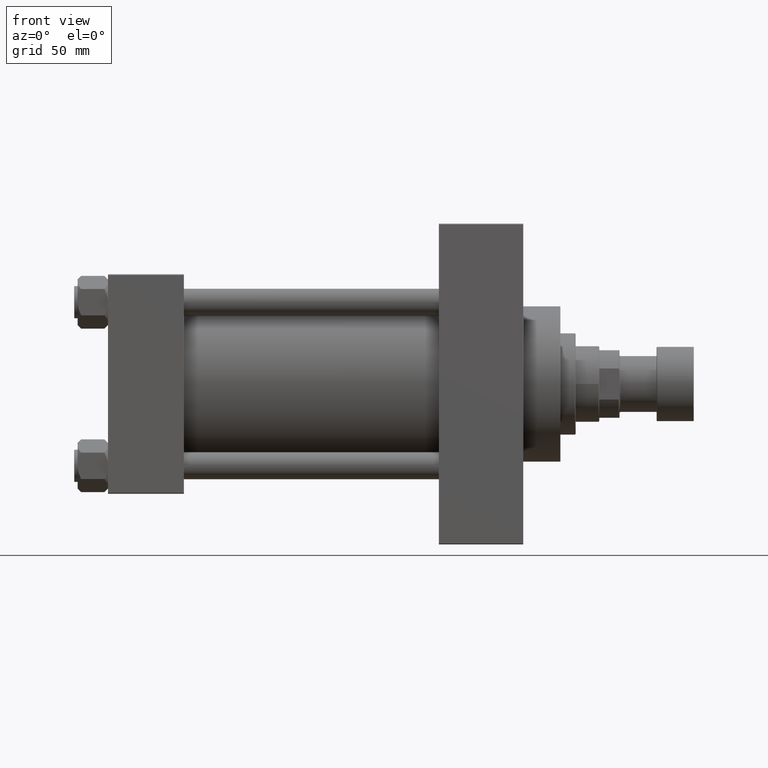
[diagram: clean part render]
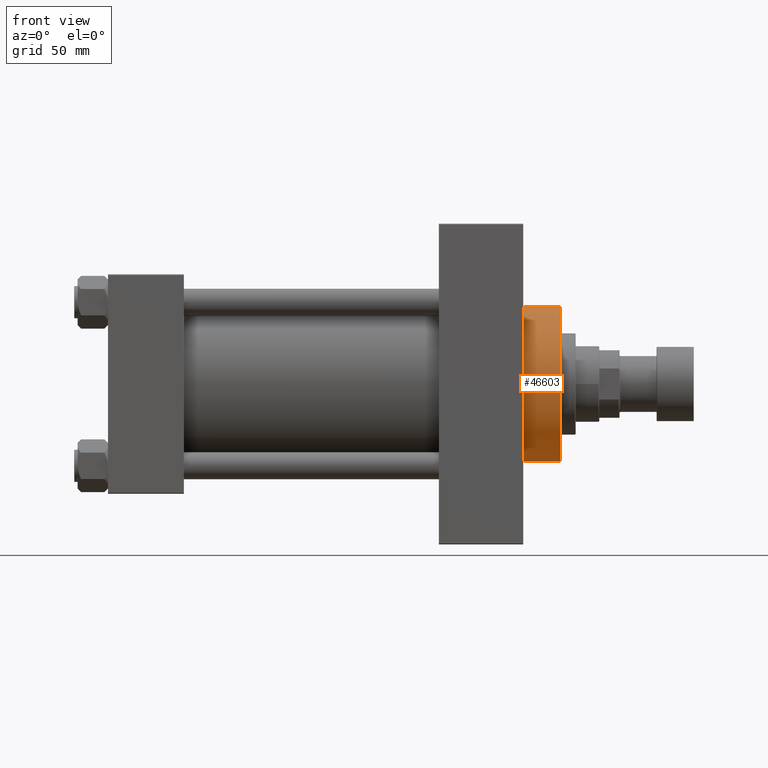
[diagram: same view with one face highlighted and labeled with its STEP entity id]
A machine part, front view. The second image highlights one B-rep face of the part: STEP entity #46603.
In plain terms, the highlighted cylindrical surface (partial cylindrical patch) has radius 46 mm, axis along (-1, -0, -0).
Its self-contained STEP definition (entity closure, byte-faithful):
#160 = EDGE_CURVE ( 'NONE', #10653, #19924, #6508, .T. ) ;
#283 = CIRCLE ( 'NONE', #34439, 46.00000000000000000 ) ;
#1987 = VERTEX_POINT ( 'NONE', #38697 ) ;
#3512 = DIRECTION ( 'NONE',  ( -1.000000000000000000, -0.000000000000000000, -0.000000000000000000 ) ) ;
#6508 = CIRCLE ( 'NONE', #36809, 46.00000000000000000 ) ;
#6886 = FACE_OUTER_BOUND ( 'NONE', #14130, .T. ) ;
#7380 = DIRECTION ( 'NONE',  ( 0.000000000000000000, 0.000000000000000000, -1.000000000000000000 ) ) ;
#8718 = ORIENTED_EDGE ( 'NONE', *, *, #160, .F. ) ;
#8964 = EDGE_CURVE ( 'NONE', #10653, #12693, #17876, .T. ) ;
#9139 = CYLINDRICAL_SURFACE ( 'NONE', #28569, 46.00000000000000000 ) ;
#10653 = VERTEX_POINT ( 'NONE', #21897 ) ;
#11039 = EDGE_CURVE ( 'NONE', #19924, #1987, #20526, .T. ) ;
#12693 = VERTEX_POINT ( 'NONE', #46861 ) ;
#13602 = ORIENTED_EDGE ( 'NONE', *, *, #11039, .F. ) ;
#14130 = EDGE_LOOP ( 'NONE', ( #13602, #8718, #41101, #45864 ) ) ;
#17876 = LINE ( 'NONE', #47777, #37236 ) ;
#19924 = VERTEX_POINT ( 'NONE', #34164 ) ;
#20526 = LINE ( 'NONE', #24409, #46609 ) ;
#21732 = DIRECTION ( 'NONE',  ( -1.000000000000000000, -0.000000000000000000, -0.000000000000000000 ) ) ;
#21897 = CARTESIAN_POINT ( 'NONE',  ( 268.0000000000000000, 0.000000000000000000, 46.00000000000000000 ) ) ;
#24409 = CARTESIAN_POINT ( 'NONE',  ( 268.0000000000000000, 5.633375276077824704E-15, -46.00000000000000000 ) ) ;
#28569 = AXIS2_PLACEMENT_3D ( 'NONE', #38805, #21732, #31535 ) ;
#31535 = DIRECTION ( 'NONE',  ( 0.000000000000000000, 0.000000000000000000, 1.000000000000000000 ) ) ;
#31890 = CARTESIAN_POINT ( 'NONE',  ( 268.0000000000000000, 0.000000000000000000, 0.000000000000000000 ) ) ;
#34164 = CARTESIAN_POINT ( 'NONE',  ( 268.0000000000000000, 5.633375276077824704E-15, -46.00000000000000000 ) ) ;
#34439 = AXIS2_PLACEMENT_3D ( 'NONE', #37755, #44129, #7380 ) ;
#34562 = DIRECTION ( 'NONE',  ( 0.000000000000000000, 0.000000000000000000, -1.000000000000000000 ) ) ;
#35033 = DIRECTION ( 'NONE',  ( 1.000000000000000000, 0.000000000000000000, 0.000000000000000000 ) ) ;
#35595 = DIRECTION ( 'NONE',  ( -1.000000000000000000, -0.000000000000000000, -0.000000000000000000 ) ) ;
#36809 = AXIS2_PLACEMENT_3D ( 'NONE', #31890, #35033, #34562 ) ;
#37236 = VECTOR ( 'NONE', #3512, 1000.000000000000000 ) ;
#37551 = EDGE_CURVE ( 'NONE', #12693, #1987, #283, .T. ) ;
#37755 = CARTESIAN_POINT ( 'NONE',  ( 246.0000000000000000, 0.000000000000000000, 0.000000000000000000 ) ) ;
#38697 = CARTESIAN_POINT ( 'NONE',  ( 246.0000000000000000, 5.633375276077824704E-15, -46.00000000000000000 ) ) ;
#38805 = CARTESIAN_POINT ( 'NONE',  ( 268.0000000000000000, 0.000000000000000000, 0.000000000000000000 ) ) ;
#41101 = ORIENTED_EDGE ( 'NONE', *, *, #8964, .T. ) ;
#44129 = DIRECTION ( 'NONE',  ( 1.000000000000000000, 0.000000000000000000, 0.000000000000000000 ) ) ;
#45864 = ORIENTED_EDGE ( 'NONE', *, *, #37551, .T. ) ;
#46603 = ADVANCED_FACE ( 'NONE', ( #6886 ), #9139, .T. ) ;
#46609 = VECTOR ( 'NONE', #35595, 1000.000000000000000 ) ;
#46861 = CARTESIAN_POINT ( 'NONE',  ( 246.0000000000000000, 0.000000000000000000, 46.00000000000000000 ) ) ;
#47777 = CARTESIAN_POINT ( 'NONE',  ( 268.0000000000000000, 0.000000000000000000, 46.00000000000000000 ) ) ;